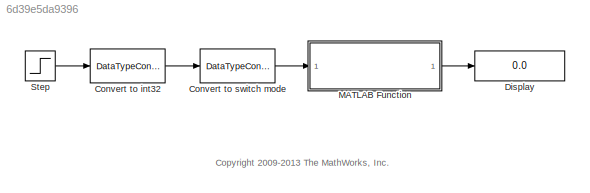
MODEL slx_6d39e5da9396
KIND model
CONFIG AbsTol = auto
CONFIG FixedStep = 1
CONFIG MaxStep = auto
CONFIG MinStep = auto
CONFIG RelTol = 1e-3
CONFIG SampleTimeConstraint = Unconstrained
CONFIG Solver = FixedStepDiscrete
CONFIG SolverMode = Auto
CONFIG SolverName = FixedStepDiscrete
CONFIG StartTime = 0.0
CONFIG StopTime = 9
BLOCK [DataTypeConversion] Convert to int32
  OutDataTypeStr = int32
  OutMax = 1
  OutMin = 0
  RndMeth = Floor
  SaturateOnIntegerOverflow = off
BLOCK [DataTypeConversion] Convert to switch mode
  OutDataTypeStr = Enum:switchmode
  RndMeth = Floor
BLOCK [Display] Display
  Decimation = 1
  Ports = [1]
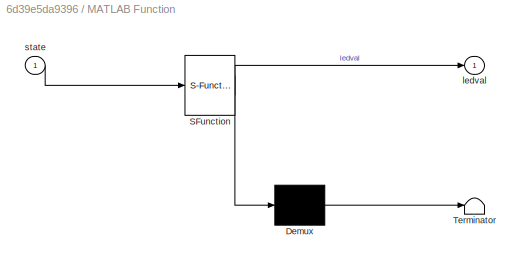
BLOCK [SubSystem] MATLAB Function
  ErrorFcn = Stateflow.Translate.translate
  PermitHierarchicalResolution = ParametersOnly
  Ports = [1, 1]
  RequestExecContextInheritance = off
  SFBlockType = MATLAB Function
  TreatAsAtomicUnit = on
  Variant = off
BLOCK [Demux] MATLAB Function/ Demux 
  Outputs = 1
  Ports = [1, 1]
BLOCK [S-Function] MATLAB Function/ SFunction 
  EnableBusSupport = off
  FunctionName = sf_sfun
  PortCounts = [1 2]
  Ports = [1, 2]
  SFunctionDeploymentMode = off
  Tag = Stateflow S-Function emldemo_led_switch_tmp 2
BLOCK [Terminator] MATLAB Function/ Terminator 
BLOCK [Outport] MATLAB Function/ledval
  IconDisplay = Port number
BLOCK [Inport] MATLAB Function/state
  IconDisplay = Port number
BLOCK [Step] Step
  SampleTime = 10
ANNOTATION (root): <copyright redacted>
LINE Convert to int32:1 -> Convert to switch mode:1
LINE Convert to switch mode:1 -> MATLAB Function:1
LINE MATLAB Function:1 -> Display:1
LINE Step:1 -> Convert to int32:1
CHART MATLAB Function states=1 transitions=1
  STATE_LABEL 'eML_blk_kernel()'
  STATE_LABEL 'SCRIPT:\nfunction ledval = checkState(state)\n%#codegen\n\nif state == switchmode.ON\n    ledval = led.GREEN;\nelse\n    ledval = led.RED;\nend'
